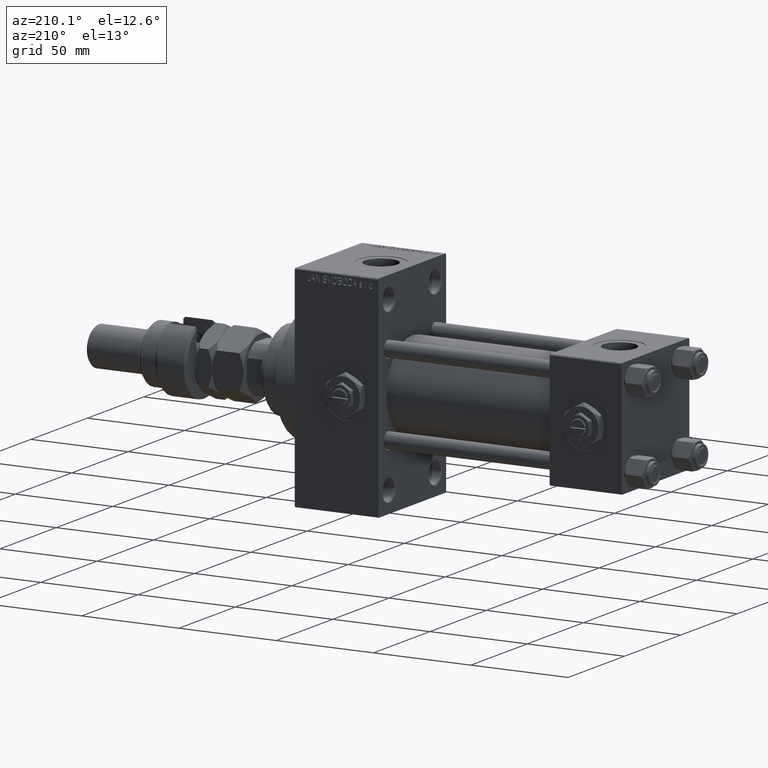
[diagram: clean part render]
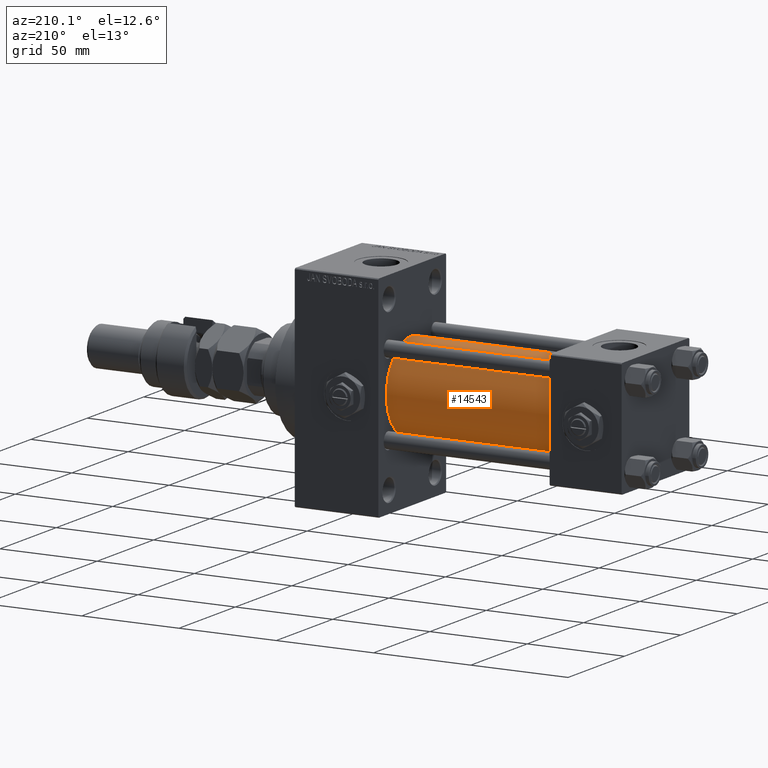
[diagram: same view with one face highlighted and labeled with its STEP entity id]
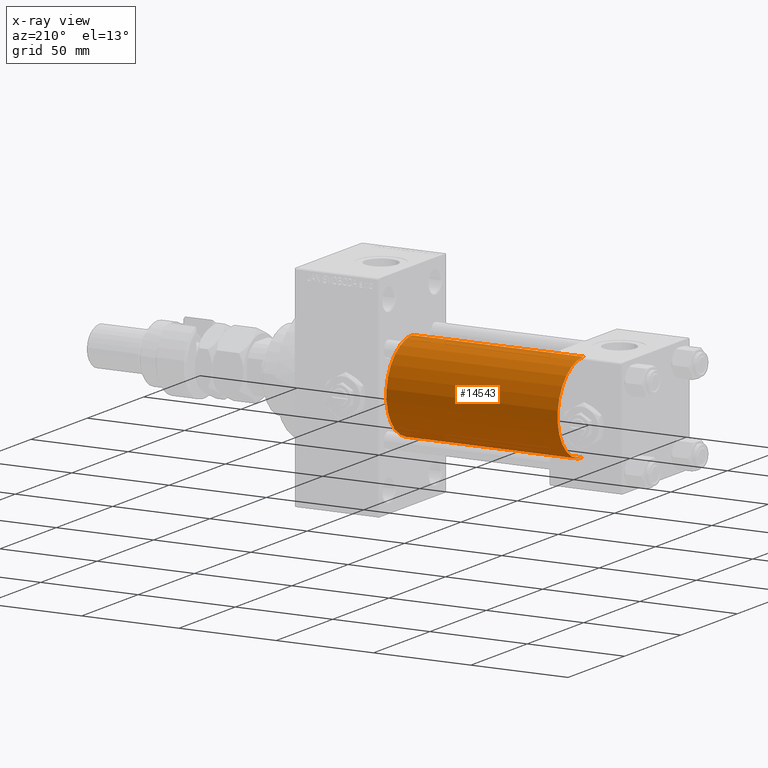
[diagram: x-ray of the same camera — body ghosted, the highlighted face saturated]
A machine part, auxiliary view. The second image highlights one B-rep face of the part: STEP entity #14543.
The next image is the same camera in x-ray: the body ghosted, the highlighted face saturated — about 0% of this face is hidden behind the body in this view.
In plain terms, the highlighted cylindrical surface (partial cylindrical patch) has radius 23 mm, axis along (-1, -0, -0).
Its self-contained STEP definition (entity closure, byte-faithful):
#78 = LINE ( 'NONE', #20506, #22568 ) ;
#4833 = AXIS2_PLACEMENT_3D ( 'NONE', #15239, #7521, #47557 ) ;
#5651 = CARTESIAN_POINT ( 'NONE',  ( 37.00000000000000711, -2.602085213965210642E-15, 23.00000000000000000 ) ) ;
#7379 = CIRCLE ( 'NONE', #19366, 23.00000000000000000 ) ;
#7521 = DIRECTION ( 'NONE',  ( 1.000000000000000000, 0.000000000000000000, 0.000000000000000000 ) ) ;
#9264 = ORIENTED_EDGE ( 'NONE', *, *, #10804, .F. ) ;
#9321 = EDGE_CURVE ( 'NONE', #51315, #20043, #78, .T. ) ;
#9635 = CARTESIAN_POINT ( 'NONE',  ( 125.0000000000000000, 2.146024240737016609E-16, -23.00000000000000000 ) ) ;
#10804 = EDGE_CURVE ( 'NONE', #51315, #29871, #27713, .T. ) ;
#11782 = FACE_OUTER_BOUND ( 'NONE', #30684, .T. ) ;
#12382 = CARTESIAN_POINT ( 'NONE',  ( 125.0000000000000000, -2.602085213965210642E-15, 23.00000000000000000 ) ) ;
#14543 = ADVANCED_FACE ( 'NONE', ( #11782 ), #51012, .T. ) ;
#14670 = EDGE_CURVE ( 'NONE', #29871, #31314, #41692, .T. ) ;
#15239 = CARTESIAN_POINT ( 'NONE',  ( 125.0000000000000000, -2.602085213965210642E-15, 0.000000000000000000 ) ) ;
#15498 = CARTESIAN_POINT ( 'NONE',  ( 125.0000000000000000, -2.602085213965210642E-15, 0.000000000000000000 ) ) ;
#17861 = DIRECTION ( 'NONE',  ( -1.000000000000000000, -0.000000000000000000, -0.000000000000000000 ) ) ;
#19366 = AXIS2_PLACEMENT_3D ( 'NONE', #22099, #41437, #21309 ) ;
#20043 = VERTEX_POINT ( 'NONE', #50810 ) ;
#20506 = CARTESIAN_POINT ( 'NONE',  ( 125.0000000000000000, 2.146024240737016609E-16, -23.00000000000000000 ) ) ;
#21309 = DIRECTION ( 'NONE',  ( 0.000000000000000000, 0.000000000000000000, 1.000000000000000000 ) ) ;
#22099 = CARTESIAN_POINT ( 'NONE',  ( 37.00000000000000711, -2.602085213965210642E-15, 0.000000000000000000 ) ) ;
#22568 = VECTOR ( 'NONE', #48846, 1000.000000000000000 ) ;
#23196 = DIRECTION ( 'NONE',  ( 0.000000000000000000, 0.000000000000000000, 1.000000000000000000 ) ) ;
#27713 = CIRCLE ( 'NONE', #4833, 23.00000000000000000 ) ;
#29871 = VERTEX_POINT ( 'NONE', #12382 ) ;
#30684 = EDGE_LOOP ( 'NONE', ( #9264, #37570, #47953, #46543 ) ) ;
#31314 = VERTEX_POINT ( 'NONE', #5651 ) ;
#35222 = VECTOR ( 'NONE', #17861, 1000.000000000000000 ) ;
#35640 = DIRECTION ( 'NONE',  ( -1.000000000000000000, -0.000000000000000000, -0.000000000000000000 ) ) ;
#37570 = ORIENTED_EDGE ( 'NONE', *, *, #9321, .T. ) ;
#41437 = DIRECTION ( 'NONE',  ( 1.000000000000000000, -0.000000000000000000, 0.000000000000000000 ) ) ;
#41692 = LINE ( 'NONE', #46191, #35222 ) ;
#44408 = EDGE_CURVE ( 'NONE', #20043, #31314, #7379, .T. ) ;
#46191 = CARTESIAN_POINT ( 'NONE',  ( 125.0000000000000000, -2.602085213965210642E-15, 23.00000000000000000 ) ) ;
#46543 = ORIENTED_EDGE ( 'NONE', *, *, #14670, .F. ) ;
#47063 = AXIS2_PLACEMENT_3D ( 'NONE', #15498, #35640, #23196 ) ;
#47557 = DIRECTION ( 'NONE',  ( 0.000000000000000000, 0.000000000000000000, -1.000000000000000000 ) ) ;
#47953 = ORIENTED_EDGE ( 'NONE', *, *, #44408, .T. ) ;
#48846 = DIRECTION ( 'NONE',  ( -1.000000000000000000, -0.000000000000000000, -0.000000000000000000 ) ) ;
#50810 = CARTESIAN_POINT ( 'NONE',  ( 37.00000000000000711, 2.146024240737016609E-16, -23.00000000000000000 ) ) ;
#51012 = CYLINDRICAL_SURFACE ( 'NONE', #47063, 23.00000000000000000 ) ;
#51315 = VERTEX_POINT ( 'NONE', #9635 ) ;